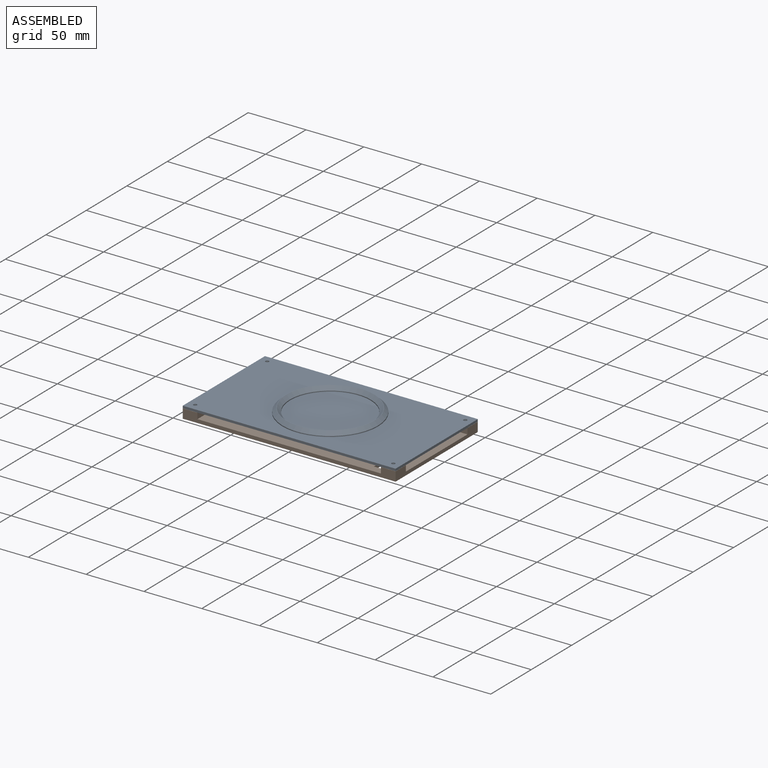
[diagram: assembled view]
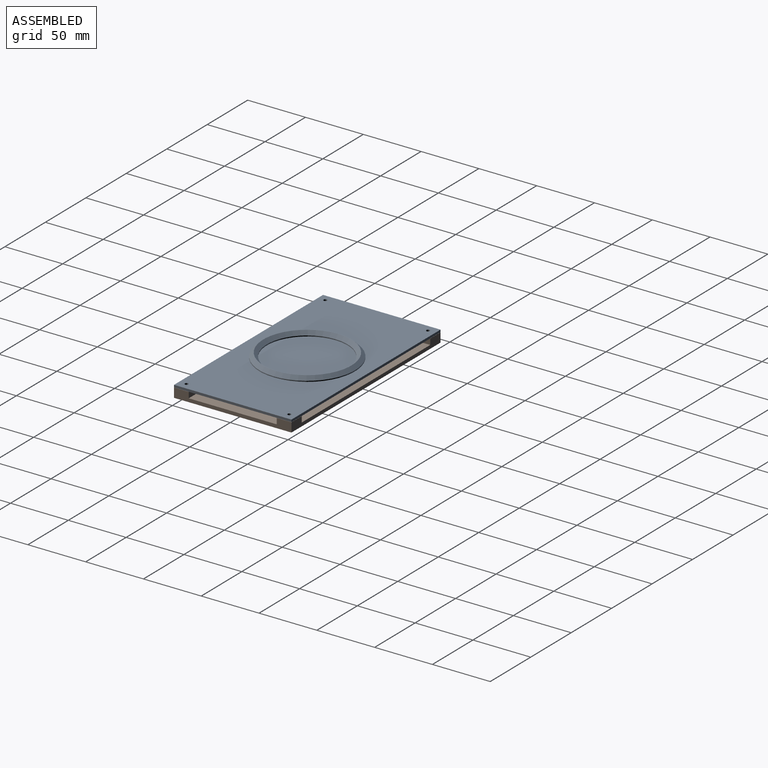
[diagram: assembled view, second angle]
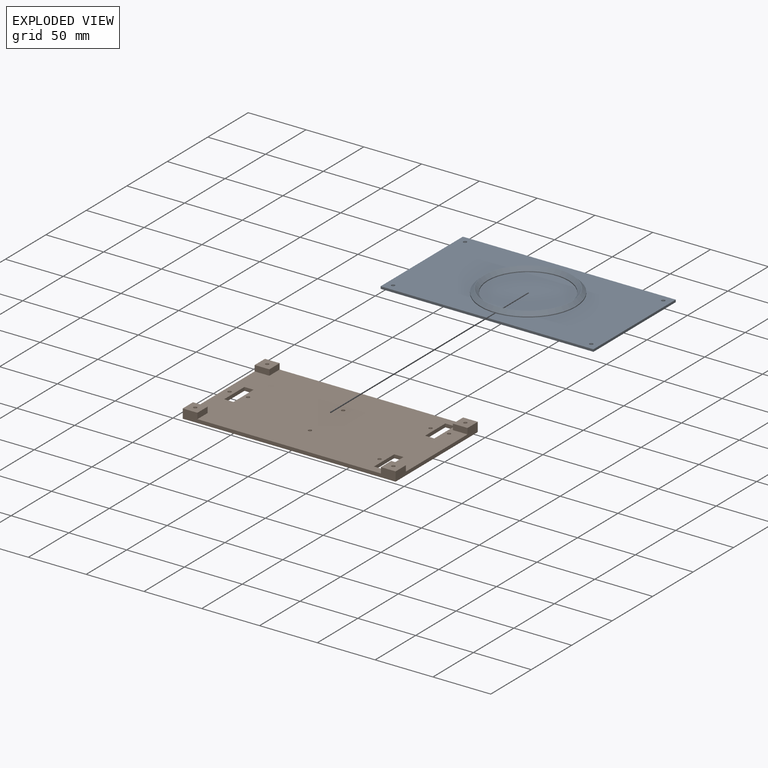
[diagram: exploded view]
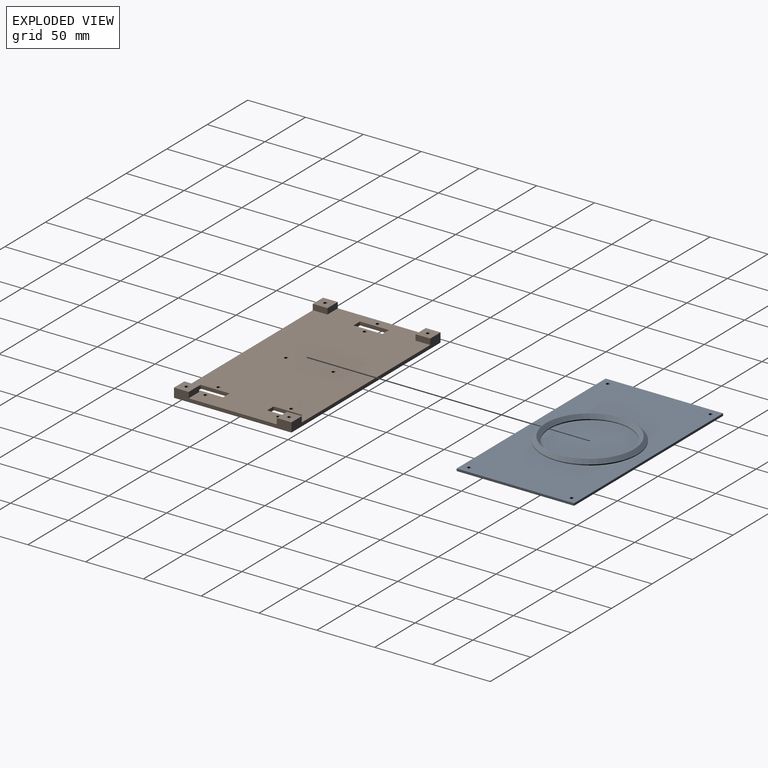
[diagram: exploded view, second angle]
ASSEMBLY  parts=2 mates=2
PART A: 16 faces, bbox 184.2x101.6x5.8 mm
  f0: plane 184.15x2mm, normal (0,1,0), area 368.3mm2, adj f1,f7,f8,f9
  f1: plane 101.6x2mm, normal (-1,0,0), area 203.2mm2, adj f0,f2,f8,f9
  f2: plane 184.15x2mm, normal (0,-1,0), area 368.3mm2, adj f1,f7,f8,f9
  f3: cylinder r=1.5mm len=3mm, axis (0,0,-1), area 18.8mm2, adj f8,f9
  f4: cylinder r=1.5mm len=3mm, axis (0,0,-1), area 18.8mm2, adj f8,f9
  f5: cylinder r=1.5mm len=3mm, axis (0,0,-1), area 18.8mm2, adj f8,f9
  f6: cylinder r=1.5mm len=3mm, axis (0,0,-1), area 18.8mm2, adj f8,f9
  f7: plane 101.6x2mm, normal (1,0,0), area 203.2mm2, adj f0,f2,f8,f9
  f8: plane 184.15x101.6mm, normal (0,0,1), area 13329.3mm2, adj f0,f1,f2,f3,f4,f5,f6,f7
  f9: plane 184.15x101.6mm, normal (0,0,-1), area 18681.4mm2, adj f0,f1,f2,f3,f4,f5,f6,f7
  f10: cylinder r=34.92mm len=69.85mm, axis (0,0,-1), area 167.2mm2, adj f13,f15
  f11: cylinder r=41.27mm len=82.55mm, axis (0,0,-1), area 197.6mm2, adj f8,f14
  f12: plane 76.45x76.45mm, normal (0,0,1), area 60.8mm2, adj f14,f15
  f13: plane 69.85x69.85mm, normal (0,0,1), area 3832mm2, adj f10
  f14: cone r=38.23mm half-angle=45deg, axis (0,0,-1), area 1076.6mm2, adj f11,f12
  f15: cone r=34.92mm half-angle=45deg, axis (0,0,1), area 987.2mm2, adj f10,f12
PART B: 42 faces, bbox 184.2x101.6x8 mm
  f0: plane 184.15x101.6mm, normal (0,0,1), area 17407.9mm2, adj f2,f3,f4,f5,f6,f7,f8,f9
  f1: plane 184.15x101.6mm, normal (0,0,-1), area 18024.8mm2, adj f2,f3,f4,f5,f6,f7,f8,f9
  f2: plane 184.15x8mm, normal (0,1,0), area 679.5mm2, adj f0,f1,f3,f5,f32,f34,f35,f37
  f3: plane 101.6x8mm, normal (-1,0,0), area 431.8mm2, adj f0,f1,f2,f4,f30,f31,f33,f34
  f4: plane 184.15x8mm, normal (0,-1,0), area 679.5mm2, adj f0,f1,f3,f5,f26,f28,f29,f31
  f5: plane 101.6x8mm, normal (1,0,0), area 431.8mm2, adj f0,f1,f2,f4,f27,f28,f36,f37
  f6: plane 8x3mm, normal (0,-1,0), area 24mm2, adj f0,f1,f7,f9
  f7: plane 25x3mm, normal (-1,0,0), area 75mm2, adj f0,f1,f6,f8
  f8: plane 8x3mm, normal (0,1,0), area 24mm2, adj f0,f1,f7,f9
  f9: plane 25x3mm, normal (1,0,0), area 75mm2, adj f0,f1,f6,f8
  f10: cylinder r=1.5mm len=3mm, axis (0,0,1), area 28.3mm2, adj f0,f1
  f11: cylinder r=1.5mm len=3mm, axis (0,0,1), area 28.3mm2, adj f0,f1
  f12: plane 8x3mm, normal (0,-1,0), area 24mm2, adj f0,f1,f13,f15
  f13: plane 25x3mm, normal (-1,0,0), area 75mm2, adj f0,f1,f12,f14
  f14: plane 8x3mm, normal (0,1,0), area 24mm2, adj f0,f1,f13,f15
  f15: plane 25x3mm, normal (1,0,0), area 75mm2, adj f0,f1,f12,f14
  f16: plane 8x3mm, normal (0,1,0), area 24mm2, adj f0,f1,f18,f19
  f17: plane 8x3mm, normal (0,-1,0), area 24mm2, adj f0,f1,f18,f19
  f18: plane 25x3mm, normal (-1,0,0), area 75mm2, adj f0,f1,f16,f17
  f19: plane 25x3mm, normal (1,0,0), area 75mm2, adj f0,f1,f16,f17
  f20: cylinder r=1.5mm len=3mm, axis (0,0,1), area 28.3mm2, adj f0,f1
  f21: cylinder r=1.5mm len=3mm, axis (0,0,1), area 28.3mm2, adj f0,f1
  f22: cylinder r=1.5mm len=3mm, axis (0,0,1), area 28.3mm2, adj f0,f1
  f23: cylinder r=1.5mm len=3mm, axis (0,0,1), area 28.3mm2, adj f0,f1
  f24: cylinder r=1.5mm len=3mm, axis (0,0,1), area 28.3mm2, adj f0,f1
  f25: cylinder r=1.5mm len=3mm, axis (0,0,1), area 28.3mm2, adj f0,f1
  f26: plane 12.7x5mm, normal (-1,0,0), area 63.5mm2, adj f0,f4,f27,f28
  f27: plane 12.7x5mm, normal (0,1,0), area 63.5mm2, adj f0,f5,f26,f28
  f28: plane 12.7x12.7mm, normal (0,0,1), area 154.2mm2, adj f4,f5,f26,f27,f39
  f29: plane 12.7x5mm, normal (1,0,0), area 63.5mm2, adj f0,f4,f30,f31
  f30: plane 12.7x5mm, normal (0,1,0), area 63.5mm2, adj f0,f3,f29,f31
  f31: plane 12.7x12.7mm, normal (0,0,1), area 154.2mm2, adj f3,f4,f29,f30,f40
  f32: plane 12.7x5mm, normal (1,0,0), area 63.5mm2, adj f0,f2,f33,f34
  f33: plane 12.7x5mm, normal (0,-1,0), area 63.5mm2, adj f0,f3,f32,f34
  f34: plane 12.7x12.7mm, normal (0,0,1), area 154.2mm2, adj f2,f3,f32,f33,f41
  f35: plane 12.7x5mm, normal (-1,0,0), area 63.5mm2, adj f0,f2,f36,f37
  f36: plane 12.7x5mm, normal (0,-1,0), area 63.5mm2, adj f0,f5,f35,f37
  f37: plane 12.7x12.7mm, normal (0,0,1), area 154.2mm2, adj f2,f5,f35,f36,f38
  f38: cylinder r=1.5mm len=8mm, axis (0,0,1), area 75.4mm2, adj f1,f37
  f39: cylinder r=1.5mm len=8mm, axis (0,0,1), area 75.4mm2, adj f1,f28
  f40: cylinder r=1.5mm len=8mm, axis (0,0,1), area 75.4mm2, adj f1,f31
  f41: cylinder r=1.5mm len=8mm, axis (0,0,1), area 75.4mm2, adj f1,f34
PLACE A t=(-47.69,-1.72,27.2)mm
PLACE B rot(axis=(-0.74,0.2,0.64),0deg) t=(-50.86,-1.72,19.07)mm
MATE planar A.f2 <-> B.f4  axis (0,-1,0) through (-47.69,-52.52,28.2)mm
MATE planar A.f7 <-> B.f5  axis (1,0,0) through (44.39,-1.72,28.2)mm
